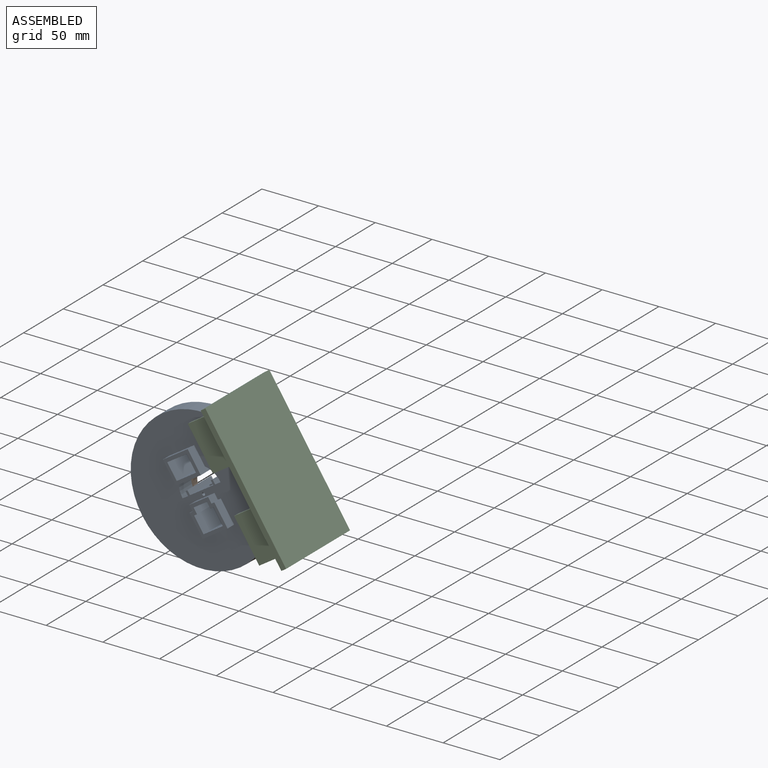
[diagram: assembled view]
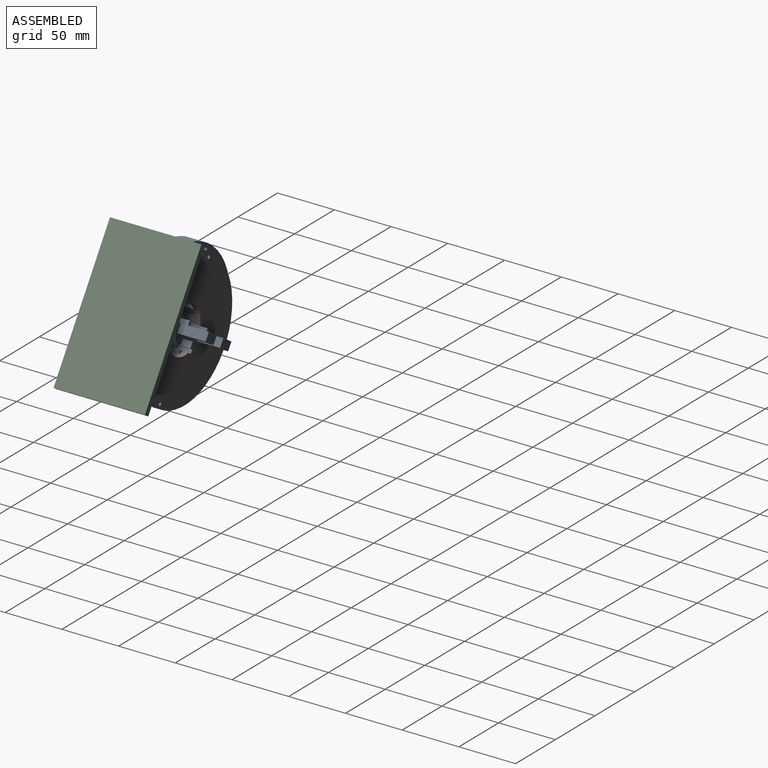
[diagram: assembled view, second angle]
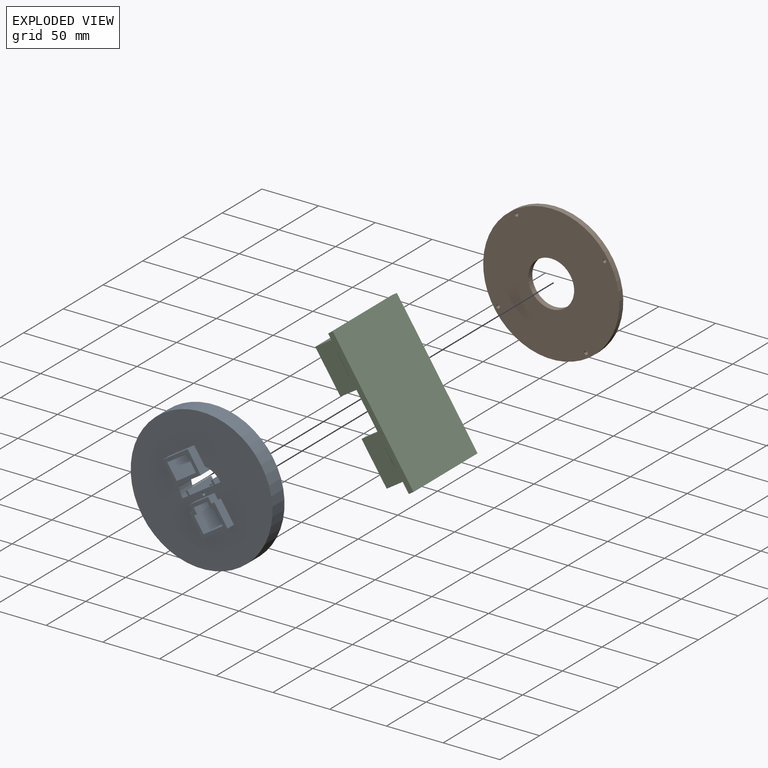
[diagram: exploded view]
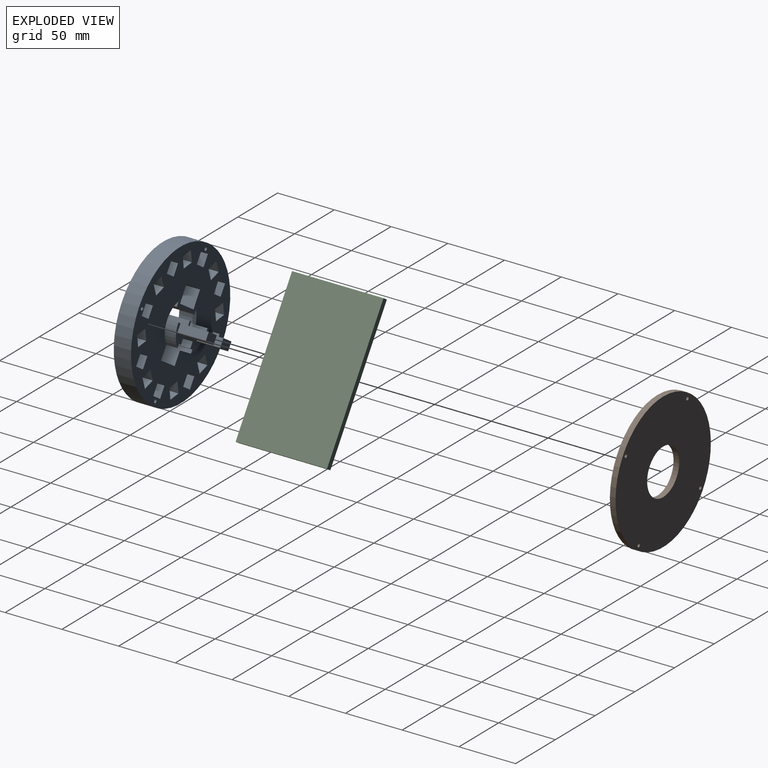
[diagram: exploded view, second angle]
ASSEMBLY  parts=3 mates=2
PART A: 152 faces, bbox 125x58.2x125 mm
  f0: cylinder r=20mm len=15.2mm, axis (0,1,0), area 259.4mm2, adj f1,f6,f8,f140
  f1: plane 125x125mm, normal (0,1,0), area 10624.5mm2, adj f0,f5,f8,f10,f11,f12,f13,f14
  f2: plane 33.2x5.5mm, normal (1,0,0), area 182.6mm2, adj f4,f9,f122,f138
  f3: plane 33.2x5.5mm, normal (-1,0,0), area 182.6mm2, adj f4,f9,f123,f138
  f4: plane 40x17.23mm, normal (0,-1,0), area 192.7mm2, adj f2,f3,f7,f8,f9,f22,f112,f113
  f5: cylinder r=20mm len=15.2mm, axis (0,1,0), area 259.4mm2, adj f1,f6,f8,f143
  f6: plane 125x125mm, normal (0,-1,0), area 8910.5mm2, adj f0,f5,f7,f23,f24,f25,f26,f27
  f7: cylinder r=20mm len=17.23mm, axis (0,1,0), area 203.5mm2, adj f4,f6,f8,f126
  f8: plane 50x40mm, normal (0,0,1), area 1397.4mm2, adj f0,f1,f4,f5,f7,f11,f12,f14
  f9: plane 33.2x14mm, normal (0,0,-1), area 334.9mm2, adj f2,f3,f4,f17,f18,f19,f20,f138
  f10: cylinder r=1.35mm len=4mm, axis (0,1,0), area 33.9mm2, adj f1,f17
  f11: plane 30.2x4mm, normal (-1,0,0), area 120.8mm2, adj f1,f8,f13,f120
  f12: plane 30.2x4mm, normal (1,0,0), area 120.8mm2, adj f1,f8,f13,f120
  f13: plane 30.2x2mm, normal (0,0,1), area 60.4mm2, adj f1,f11,f12,f120
  f14: plane 30.2x4mm, normal (-1,0,0), area 120.8mm2, adj f1,f8,f16,f121
  f15: plane 30.2x4mm, normal (1,0,0), area 120.8mm2, adj f1,f8,f16,f121
  f16: plane 30.2x2mm, normal (0,0,1), area 60.4mm2, adj f1,f14,f15,f121
  f17: plane 10.4x8.5mm, normal (0,-1,0), area 82.7mm2, adj f8,f9,f10,f18,f20
  f18: plane 11.9x8.5mm, normal (1,0,0), area 101.2mm2, adj f8,f9,f17,f19
  f19: plane 10.4x8.5mm, normal (0,1,0), area 82.7mm2, adj f8,f9,f18,f20,f119
  f20: plane 11.9x8.5mm, normal (-1,0,0), area 101.2mm2, adj f8,f9,f17,f19
  f21: plane 12x7.5mm, normal (0,-1,0), area 90mm2, adj f8,f22,f113,f116
  f22: plane 34x25mm, normal (0,0,-1), area 642mm2, adj f4,f21,f113,f114,f115,f116,f117,f118
  f23: plane 10.2x10.2mm, normal (0,0,1), area 104mm2, adj f6,f24,f71,f103
  f24: plane 10.2x10.2mm, normal (1,0,0), area 104mm2, adj f6,f23,f25,f103
  f25: plane 10.2x10.2mm, normal (0,0,-1), area 104mm2, adj f6,f24,f71,f103
  f26: plane 10.2x7.83mm, normal (-0.77,0,0.64), area 104mm2, adj f6,f27,f72,f102
  f27: plane 10.2x7.83mm, normal (0.64,0,0.77), area 104mm2, adj f6,f26,f28,f102
  f28: plane 10.2x7.83mm, normal (0.77,0,-0.64), area 104mm2, adj f6,f27,f72,f102
  f29: plane 10.2x7.83mm, normal (-0.77,0,-0.64), area 104mm2, adj f6,f30,f73,f101
  f30: plane 10.2x7.83mm, normal (-0.64,0,0.77), area 104mm2, adj f6,f29,f31,f101
  f31: plane 10.2x7.83mm, normal (0.77,0,0.64), area 104mm2, adj f6,f30,f73,f101
  f32: plane 10.2x10.2mm, normal (-1,0,0), area 104mm2, adj f6,f33,f74,f100
  f33: plane 10.2x10.2mm, normal (0,0,1), area 104mm2, adj f6,f32,f34,f100
  f34: plane 10.2x10.2mm, normal (1,0,0), area 104mm2, adj f6,f33,f74,f100
  f35: plane 10.2x7.83mm, normal (-0.77,0,0.64), area 104mm2, adj f6,f36,f75,f99
  f36: plane 10.2x7.83mm, normal (0.64,0,0.77), area 104mm2, adj f6,f35,f37,f99
  f37: plane 10.2x7.83mm, normal (0.77,0,-0.64), area 104mm2, adj f6,f36,f75,f99
  f38: plane 10.2x10.2mm, normal (0,0,1), area 104mm2, adj f6,f39,f76,f98
  f39: plane 10.2x10.2mm, normal (1,0,0), area 104mm2, adj f6,f38,f40,f98
  f40: plane 10.2x10.2mm, normal (0,0,-1), area 104mm2, adj f6,f39,f76,f98
  f41: plane 10.2x7.83mm, normal (-0.64,0,0.77), area 104mm2, adj f6,f42,f77,f97
  f42: plane 10.2x7.83mm, normal (0.77,0,0.64), area 104mm2, adj f6,f41,f43,f97
  f43: plane 10.2x7.83mm, normal (0.64,0,-0.77), area 104mm2, adj f6,f42,f77,f97
  f44: plane 10.2x10.2mm, normal (0,0,1), area 104mm2, adj f6,f45,f78,f96
  f45: plane 10.2x10.2mm, normal (1,0,0), area 104mm2, adj f6,f44,f46,f96
  f46: plane 10.2x10.2mm, normal (0,0,-1), area 104mm2, adj f6,f45,f78,f96
  f47: plane 10.2x7.83mm, normal (0.64,0,0.77), area 104mm2, adj f6,f48,f79,f95
  f48: plane 10.2x7.83mm, normal (0.77,0,-0.64), area 104mm2, adj f6,f47,f49,f95
  f49: plane 10.2x7.83mm, normal (-0.64,0,-0.77), area 104mm2, adj f6,f48,f79,f95
  f50: plane 10.2x10.2mm, normal (1,0,0), area 104mm2, adj f6,f51,f80,f94
  f51: plane 10.2x10.2mm, normal (0,0,-1), area 104mm2, adj f6,f50,f52,f94
  f52: plane 10.2x10.2mm, normal (-1,0,0), area 104mm2, adj f6,f51,f80,f94
  f53: plane 10.2x7.83mm, normal (0.77,0,0.64), area 104mm2, adj f6,f54,f81,f93
  f54: plane 10.2x7.83mm, normal (0.64,0,-0.77), area 104mm2, adj f6,f53,f55,f93
  f55: plane 10.2x7.83mm, normal (-0.77,0,-0.64), area 104mm2, adj f6,f54,f81,f93
  f56: plane 10.2x10.2mm, normal (1,0,0), area 104mm2, adj f6,f57,f82,f92
  f57: plane 10.2x10.2mm, normal (0,0,-1), area 104mm2, adj f6,f56,f58,f92
  f58: plane 10.2x10.2mm, normal (-1,0,0), area 104mm2, adj f6,f57,f82,f92
  f59: plane 10.2x7.83mm, normal (0.77,0,-0.64), area 104mm2, adj f6,f60,f83,f91
  f60: plane 10.2x7.83mm, normal (-0.64,0,-0.77), area 104mm2, adj f6,f59,f61,f91
  f61: plane 10.2x7.83mm, normal (-0.77,0,0.64), area 104mm2, adj f6,f60,f83,f91
  f62: plane 10.2x10.2mm, normal (0,0,-1), area 104mm2, adj f6,f63,f84,f90
  f63: plane 10.2x10.2mm, normal (-1,0,0), area 104mm2, adj f6,f62,f64,f90
  f64: plane 10.2x10.2mm, normal (0,0,1), area 104mm2, adj f6,f63,f84,f90
  f65: plane 10.2x7.83mm, normal (0.64,0,-0.77), area 104mm2, adj f6,f66,f85,f89
  f66: plane 10.2x7.83mm, normal (-0.77,0,-0.64), area 104mm2, adj f6,f65,f67,f89
  f67: plane 10.2x7.83mm, normal (-0.64,0,0.77), area 104mm2, adj f6,f66,f85,f89
  f68: plane 10.2x10.2mm, normal (0,0,-1), area 104mm2, adj f6,f69,f86,f88
  f69: plane 10.2x10.2mm, normal (-1,0,0), area 104mm2, adj f6,f68,f70,f88
  f70: plane 10.2x10.2mm, normal (0,0,1), area 104mm2, adj f6,f69,f86,f88
  f71: plane 10.2x10.2mm, normal (-1,0,0), area 104mm2, adj f6,f23,f25,f103
  f72: plane 10.2x7.83mm, normal (-0.64,0,-0.77), area 104mm2, adj f6,f26,f28,f102
  f73: plane 10.2x7.83mm, normal (0.64,0,-0.77), area 104mm2, adj f6,f29,f31,f101
  f74: plane 10.2x10.2mm, normal (0,0,-1), area 104mm2, adj f6,f32,f34,f100
  f75: plane 10.2x7.83mm, normal (-0.64,0,-0.77), area 104mm2, adj f6,f35,f37,f99
  f76: plane 10.2x10.2mm, normal (-1,0,0), area 104mm2, adj f6,f38,f40,f98
  f77: plane 10.2x7.83mm, normal (-0.77,0,-0.64), area 104mm2, adj f6,f41,f43,f97
  f78: plane 10.2x10.2mm, normal (-1,0,0), area 104mm2, adj f6,f44,f46,f96
  f79: plane 10.2x7.83mm, normal (-0.77,0,0.64), area 104mm2, adj f6,f47,f49,f95
  f80: plane 10.2x10.2mm, normal (0,0,1), area 104mm2, adj f6,f50,f52,f94
  f81: plane 10.2x7.83mm, normal (-0.64,0,0.77), area 104mm2, adj f6,f53,f55,f93
  f82: plane 10.2x10.2mm, normal (0,0,1), area 104mm2, adj f6,f56,f58,f92
  f83: plane 10.2x7.83mm, normal (0.64,0,0.77), area 104mm2, adj f6,f59,f61,f91
  f84: plane 10.2x10.2mm, normal (1,0,0), area 104mm2, adj f6,f62,f64,f90
  f85: plane 10.2x7.83mm, normal (0.77,0,0.64), area 104mm2, adj f6,f65,f67,f89
  f86: plane 10.2x10.2mm, normal (1,0,0), area 104mm2, adj f6,f68,f70,f88
  f87: cylinder r=62.5mm len=125mm, axis (0,1,0), area 5969mm2, adj f1,f6
  f88: plane 10.2x10.2mm, normal (0,-1,0), area 104mm2, adj f68,f69,f70,f86
  f89: plane 14.37x14.37mm, normal (0,-1,0), area 104mm2, adj f65,f66,f67,f85
  f90: plane 10.2x10.2mm, normal (0,-1,0), area 104mm2, adj f62,f63,f64,f84
  f91: plane 14.37x14.37mm, normal (0,-1,0), area 104mm2, adj f59,f60,f61,f83
  f92: plane 10.2x10.2mm, normal (0,-1,0), area 104mm2, adj f56,f57,f58,f82
  f93: plane 14.37x14.37mm, normal (0,-1,0), area 104mm2, adj f53,f54,f55,f81
  f94: plane 10.2x10.2mm, normal (0,-1,0), area 104mm2, adj f50,f51,f52,f80
  f95: plane 14.37x14.37mm, normal (0,-1,0), area 104mm2, adj f47,f48,f49,f79
  f96: plane 10.2x10.2mm, normal (0,-1,0), area 104mm2, adj f44,f45,f46,f78
  f97: plane 14.37x14.37mm, normal (0,-1,0), area 104mm2, adj f41,f42,f43,f77
  f98: plane 10.2x10.2mm, normal (0,-1,0), area 104mm2, adj f38,f39,f40,f76
  f99: plane 14.37x14.37mm, normal (0,-1,0), area 104mm2, adj f35,f36,f37,f75
  f100: plane 10.2x10.2mm, normal (0,-1,0), area 104mm2, adj f32,f33,f34,f74
  f101: plane 14.37x14.37mm, normal (0,-1,0), area 104mm2, adj f29,f30,f31,f73
  f102: plane 14.37x14.37mm, normal (0,-1,0), area 104mm2, adj f26,f27,f28,f72
  f103: plane 10.2x10.2mm, normal (0,-1,0), area 104mm2, adj f23,f24,f25,f71
  f104: cylinder r=1.55mm len=11.6mm, axis (0,-1,0), area 113mm2, adj f6,f105
  f105: plane 3.1x3.1mm, normal (0,-1,0), area 7.5mm2, adj f104
  f106: cylinder r=1.55mm len=11.6mm, axis (0,-1,0), area 113mm2, adj f6,f107
  f107: plane 3.1x3.1mm, normal (0,-1,0), area 7.5mm2, adj f106
  f108: cylinder r=1.55mm len=11.6mm, axis (0,-1,0), area 113mm2, adj f6,f109
  f109: plane 3.1x3.1mm, normal (0,-1,0), area 7.5mm2, adj f108
  f110: cylinder r=1.55mm len=11.6mm, axis (0,-1,0), area 113mm2, adj f6,f111
  f111: plane 3.1x3.1mm, normal (0,-1,0), area 7.5mm2, adj f110
  f112: cylinder r=20mm len=17.23mm, axis (0,1,0), area 203.5mm2, adj f4,f6,f8,f124
  f113: plane 25x7.5mm, normal (-1,0,0), area 187.5mm2, adj f4,f8,f21,f22
  f114: plane 25x7.5mm, normal (1,0,0), area 187.5mm2, adj f4,f8,f22,f115
  f115: plane 12x7.5mm, normal (0,-1,0), area 90mm2, adj f8,f22,f114,f117
  f116: plane 20.8x7.5mm, normal (1,0,0), area 156mm2, adj f8,f21,f22,f118
  f117: plane 20.8x7.5mm, normal (-1,0,0), area 156mm2, adj f8,f22,f115,f118
  f118: plane 10x7.5mm, normal (0,-1,0), area 69.3mm2, adj f8,f22,f116,f117,f119
  f119: cylinder r=1.35mm len=13.3mm, axis (0,1,0), area 112.8mm2, adj f19,f118
  f120: plane 4x2mm, normal (0,-1,0), area 8mm2, adj f8,f11,f12,f13
  f121: plane 4x2mm, normal (0,-1,0), area 8mm2, adj f8,f14,f15,f16
  f122: plane 33.2x3.15mm, normal (0,0,-1), area 104.6mm2, adj f2,f4,f126,f138
  f123: plane 33.2x3.15mm, normal (0,0,-1), area 104.6mm2, adj f3,f4,f124,f138
  f124: plane 33.2x15.2mm, normal (-1,0,0), area 387.4mm2, adj f4,f6,f112,f123,f125,f138
  f125: plane 23.4x20.3mm, normal (0,0,1), area 468.9mm2, adj f6,f124,f126,f138,f147
  f126: plane 33.2x15.2mm, normal (1,0,0), area 387.4mm2, adj f4,f6,f7,f122,f125,f138
  f127: plane 23.5x15.2mm, normal (1,0,0), area 356mm2, adj f6,f128,f142,f144,f149,f151
  f128: plane 23.4x20.3mm, normal (0,0,-1), area 468.9mm2, adj f6,f127,f129,f144,f146
  f129: plane 23.5x15.2mm, normal (-1,0,0), area 356mm2, adj f6,f128,f142,f144,f150,f151
  f130: plane 20x8.2mm, normal (0,0,1), area 157.8mm2, adj f1,f131,f137,f138,f148
  f131: plane 8.2x5.5mm, normal (1,0,0), area 45.1mm2, adj f1,f130,f132,f138
  f132: plane 8.2x3.15mm, normal (0,0,1), area 25.8mm2, adj f1,f131,f133,f138
  f133: plane 21.2x8.2mm, normal (1,0,0), area 173.8mm2, adj f1,f132,f134,f138
  f134: plane 26.3x8.2mm, normal (0,0,-1), area 209.5mm2, adj f1,f133,f135,f138,f147
  f135: plane 21.2x8.2mm, normal (-1,0,0), area 173.8mm2, adj f1,f134,f136,f138
  f136: plane 8.2x3.15mm, normal (0,0,1), area 25.8mm2, adj f1,f135,f137,f138
  f137: plane 8.2x5.5mm, normal (-1,0,0), area 45.1mm2, adj f1,f130,f136,f138
  f138: plane 26.7x26.3mm, normal (0,1,0), area 282mm2, adj f2,f3,f9,f122,f123,f124,f125,f126
  f139: plane 26.3x8.2mm, normal (0,0,1), area 209.5mm2, adj f1,f140,f143,f144,f146
  f140: plane 23.5x21.2mm, normal (1,0,0), area 236.1mm2, adj f0,f1,f139,f141,f144,f150,f151
  f141: plane 26.3x23.5mm, normal (0,0,-1), area 611.9mm2, adj f140,f143,f144,f145,f151
  f142: plane 23.5x20.3mm, normal (0,0,1), area 470.9mm2, adj f127,f129,f144,f145,f151
  f143: plane 23.5x21.2mm, normal (-1,0,0), area 236.1mm2, adj f1,f5,f139,f141,f144,f149,f151
  f144: plane 26.3x21.2mm, normal (0,1,0), area 249mm2, adj f127,f128,f129,f139,f140,f141,f142,f143
  f145: cylinder r=1.4mm len=3mm, axis (0,0,-1), area 26.4mm2, adj f141,f142
  f146: cylinder r=1.4mm len=3mm, axis (0,0,-1), area 26.4mm2, adj f128,f139
  f147: cylinder r=1.4mm len=3mm, axis (0,0,-1), area 26.4mm2, adj f125,f134
  f148: cylinder r=1.4mm len=3mm, axis (0,0,-1), area 26.4mm2, adj f9,f130
  f149: cylinder r=20mm len=3mm, axis (0,1,0), area 0.4mm2, adj f6,f127,f143,f151
  f150: cylinder r=20mm len=3mm, axis (0,1,0), area 0.4mm2, adj f6,f129,f140,f151
  f151: plane 26.3x6.23mm, normal (0,-1,0), area 92.2mm2, adj f127,f129,f140,f141,f142,f143,f149,f150
PART B: 8 faces, bbox 120x5x120 mm
  f0: cylinder r=20.2mm len=40.4mm, axis (0,1,0), area 634.6mm2, adj f2,f3
  f1: cylinder r=60mm len=120mm, axis (0,1,0), area 1885mm2, adj f2,f3
  f2: plane 120x120mm, normal (0,-1,0), area 9997.6mm2, adj f0,f1,f4,f5,f6,f7
  f3: plane 120x120mm, normal (0,1,0), area 9997.6mm2, adj f0,f1,f4,f5,f6,f7
  f4: cylinder r=1.55mm len=5mm, axis (0,-1,0), area 48.7mm2, adj f2,f3
  f5: cylinder r=1.55mm len=5mm, axis (0,-1,0), area 48.7mm2, adj f2,f3
  f6: cylinder r=1.55mm len=5mm, axis (0,-1,0), area 48.7mm2, adj f2,f3
  f7: cylinder r=1.55mm len=5mm, axis (0,-1,0), area 48.7mm2, adj f2,f3
PART C: 21 faces, bbox 80.6x130x44.3 mm
  f0: plane 130x80.6mm, normal (0,0,1), area 6959mm2, adj f1,f3,f7,f8,f10,f11,f19,f20
  f1: plane 80.6x5mm, normal (0,-1,0), area 403mm2, adj f0,f2,f19,f20
  f2: plane 130x80.6mm, normal (0,0,-1), area 10478mm2, adj f1,f3,f19,f20
  f3: plane 80.6x5mm, normal (0,1,0), area 403mm2, adj f0,f2,f19,f20
  f4: plane 40.33x30.6mm, normal (0,0,1), area 599mm2, adj f5,f8,f9,f10,f11,f12,f13,f18
  f5: cylinder r=50.5mm len=96mm, axis (1,0,0), area 2610.8mm2, adj f4,f6,f9,f12
  f6: plane 40.47x30.6mm, normal (0,0,1), area 600.4mm2, adj f5,f7,f9,f10,f11,f12,f15,f16
  f7: plane 39.31x30.6mm, normal (0,-1,0), area 1202.8mm2, adj f0,f6,f10,f11
  f8: plane 39.31x30.6mm, normal (0,1,0), area 1202.8mm2, adj f0,f4,f10,f11
  f9: plane 96x34.81mm, normal (1,0,0), area 1455.8mm2, adj f4,f5,f6,f16,f17,f18
  f10: plane 115x39.31mm, normal (-1,0,0), area 3529.3mm2, adj f0,f4,f6,f7,f8,f16,f17,f18
  f11: plane 115x39.31mm, normal (1,0,0), area 3529.3mm2, adj f0,f4,f6,f7,f8,f13,f14,f15
  f12: plane 96x34.81mm, normal (-1,0,0), area 1455.8mm2, adj f4,f5,f6,f13,f14,f15
  f13: plane 28.98x5mm, normal (0,-1,0), area 144.9mm2, adj f4,f11,f12,f14
  f14: plane 34.2x5mm, normal (0,0,1), area 171mm2, adj f11,f12,f13,f15
  f15: plane 28.98x5mm, normal (0,1,0), area 144.9mm2, adj f6,f11,f12,f14
  f16: plane 28.98x5mm, normal (0,1,0), area 144.9mm2, adj f6,f9,f10,f17
  f17: plane 34.2x5mm, normal (0,0,1), area 171mm2, adj f9,f10,f16,f18
  f18: plane 28.98x5mm, normal (0,-1,0), area 144.9mm2, adj f4,f9,f10,f17
  f19: plane 130x5mm, normal (1,0,0), area 650mm2, adj f0,f1,f2,f3
  f20: plane 130x5mm, normal (-1,0,0), area 650mm2, adj f0,f1,f2,f3
PLACE A rot(axis=(0.29,0,-0.96),180deg) t=(40.56,42.82,66.3)mm
PLACE B rot(axis=(0.29,0,-0.96),180deg) t=(42.74,53.02,64.32)mm
PLACE C rot(axis=(-0.66,-0.66,0.36),140.7deg) t=(17.44,-30.58,112.38)mm fixed
MATE planar A.f87 <-> B.f7  axis (0,1,0) through (40.56,53.02,66.3)mm
MATE planar C.f9 <-> A.f1  axis (0,1,0) through (72.78,37.82,56.35)mm
